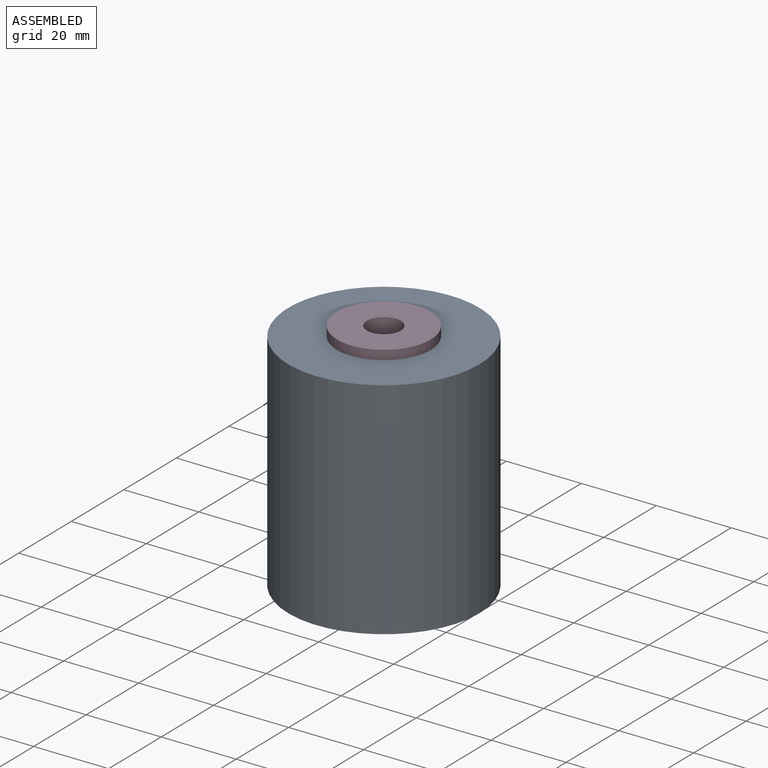
[diagram: assembled view]
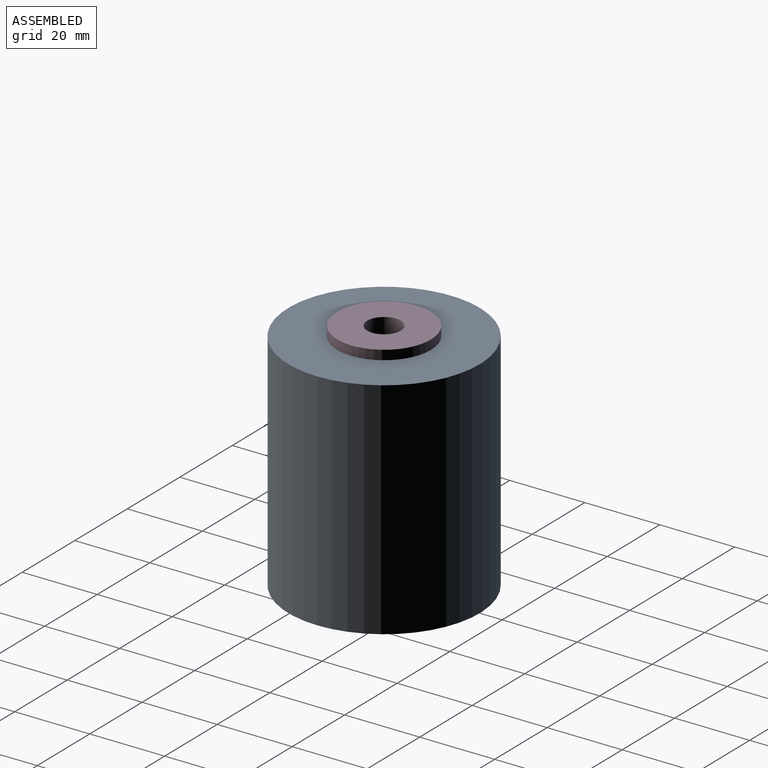
[diagram: assembled view, second angle]
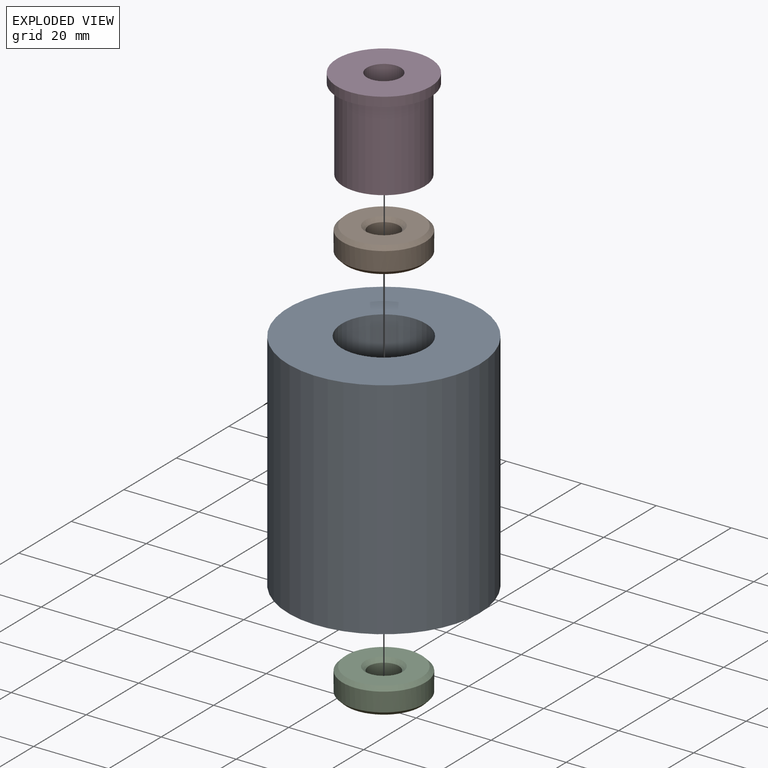
[diagram: exploded view]
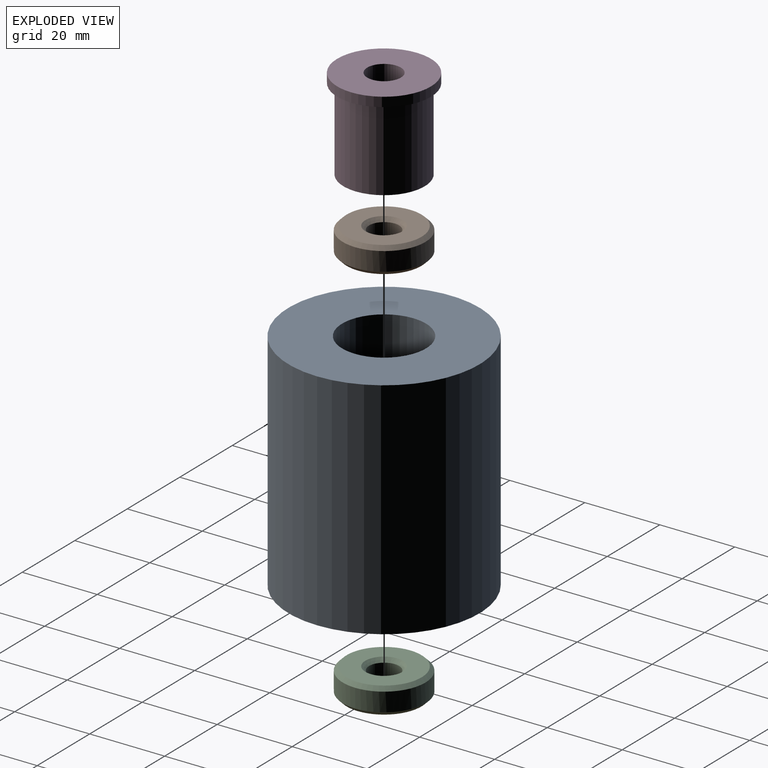
[diagram: exploded view, second angle]
ASSEMBLY  parts=4 mates=3
PART A: 6 faces, bbox 51x51x60 mm
  f0: cylinder r=11.2mm len=37mm, axis (0,0,-1), area 2603.8mm2, adj f2,f5
  f1: cylinder r=25.5mm len=60mm, axis (0,0,-1), area 9613.3mm2, adj f2,f3
  f2: plane 51x51mm, normal (0,0,1), area 1648.7mm2, adj f0,f1
  f3: plane 51x51mm, normal (0,0,-1), area 1979.2mm2, adj f1,f4
  f4: cylinder r=4.5mm len=23mm, axis (0,0,-1), area 650.3mm2, adj f3,f5
  f5: plane 22.4x22.4mm, normal (0,0,1), area 330.5mm2, adj f0,f4
PART B: 14 faces, bbox 22x22x7 mm
  f0: revolved ~10x5mm, area 20mm2, adj f1,f2,f4
  f1: revolved ~10x5mm, area 20mm2, adj f0,f3,f4
  f2: cylinder r=4mm len=8mm, axis (0,0,1), area 62.8mm2, adj f0,f3,f6
  f3: cylinder r=4mm len=8mm, axis (0,0,1), area 62.8mm2, adj f1,f2,f7
  f4: plane 20.27x20mm, normal (0,0,-1), area 235.6mm2, adj f0,f1,f5,f8
  f5: cone r=0mm half-angle=45deg, axis (0,0,1), area 46.7mm2, adj f4,f8,f9
  f6: cone r=0mm half-angle=45deg, axis (0,0,1), area 20mm2, adj f2,f7,f10
  f7: cone r=0mm half-angle=45deg, axis (0,0,1), area 20mm2, adj f3,f6,f10
  f8: cone r=0mm half-angle=45deg, axis (0,0,1), area 46.7mm2, adj f4,f5,f11
  f9: cylinder r=11mm len=22mm, axis (0,0,1), area 172.8mm2, adj f5,f11,f12
  f10: plane 20.27x20mm, normal (0,0,1), area 235.6mm2, adj f6,f7,f12,f13
  f11: cylinder r=11mm len=22mm, axis (0,0,1), area 172.8mm2, adj f8,f9,f13
  f12: revolved ~22x11mm, area 46.7mm2, adj f9,f10,f13
  f13: revolved ~22x11mm, area 46.7mm2, adj f10,f11,f12
PART C: same geometry as B
PART D: 6 faces, bbox 25x25x24.5 mm
  f0: cylinder r=12.5mm len=25mm, axis (0,0,-1), area 196.3mm2, adj f2,f3
  f1: cylinder r=4.5mm len=24.5mm, axis (0,0,-1), area 692.7mm2, adj f2,f5
  f2: plane 25x25mm, normal (0,0,1), area 427.3mm2, adj f0,f1
  f3: plane 25x25mm, normal (0,0,-1), area 121mm2, adj f0,f4
  f4: cylinder r=10.85mm len=22mm, axis (0,0,1), area 1499.8mm2, adj f3,f5
  f5: plane 21.7x21.7mm, normal (0,0,-1), area 306.2mm2, adj f1,f4
PLACE A t=(-10.72,3.01,-39.66)mm
PLACE B t=(-10.72,3.01,42.24)mm
PLACE C t=(-10.72,3.01,35.24)mm
PLACE D t=(-10.72,3.01,-39.66)mm
MATE fastened C.f6 <-> A.f0  axis (0,0,-1) through (-10.72,3.01,-16.66)mm
MATE fastened B.f6 <-> C.f8  axis (0,0,-1) through (-10.72,3.01,-9.66)mm
MATE fastened D.f0 <-> A.f1  axis (0,0,-1) through (-10.72,3.01,20.34)mm
